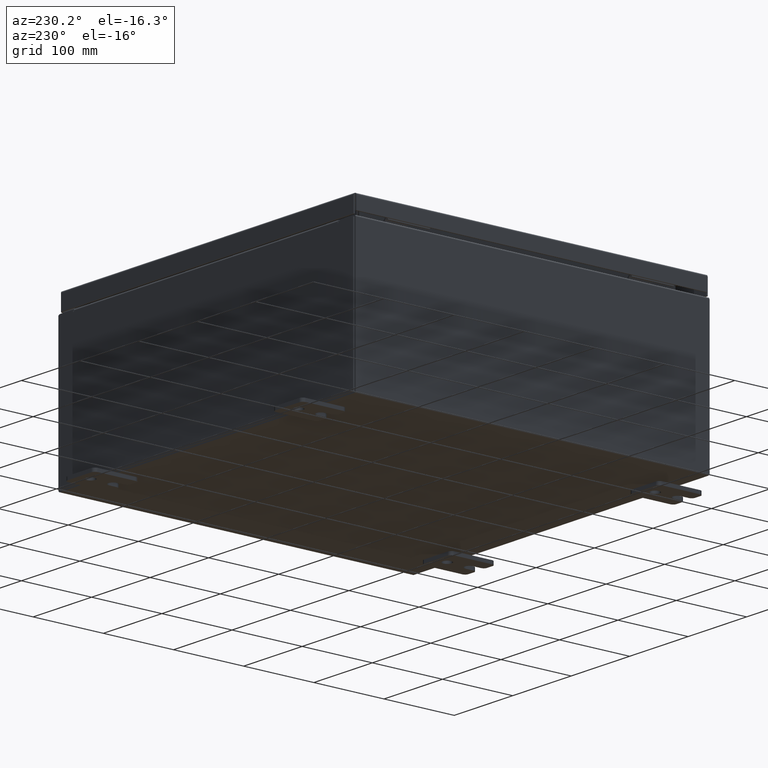
[diagram: clean part render]
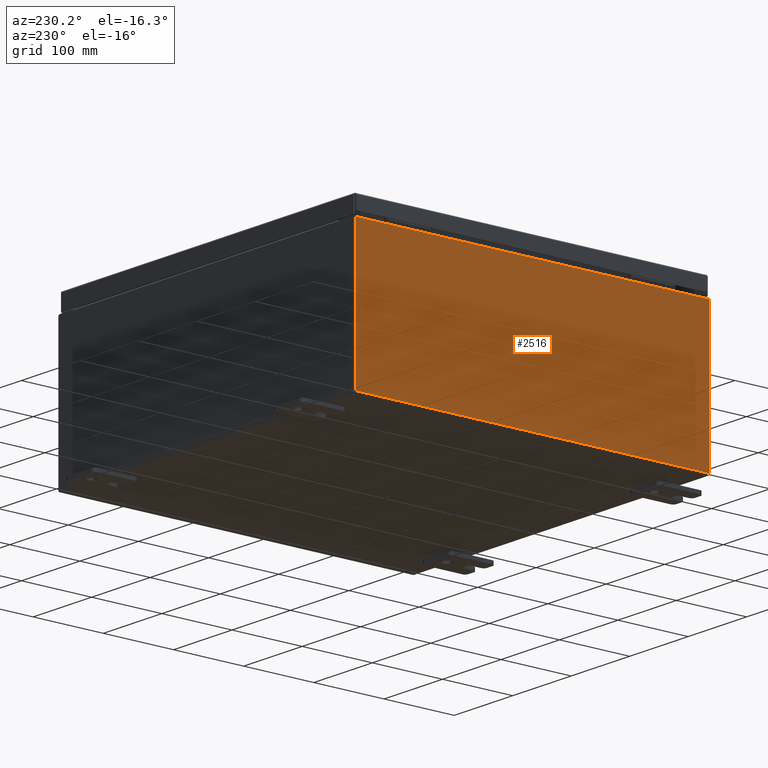
[diagram: same view with one face highlighted and labeled with its STEP entity id]
A machine part, auxiliary view. The second image highlights one B-rep face of the part: STEP entity #2516.
In plain terms, the highlighted planar face has unit normal (1, 0, 0).
Its self-contained STEP definition (entity closure, byte-faithful):
#2516 = ADVANCED_FACE ( 'NONE', ( #32071 ), #7217, .F. ) ;
#2818 = DIRECTION ( 'NONE',  ( -0.0000000000000000000, 1.000000000000000000, -0.0000000000000000000 ) ) ;
#3893 = DIRECTION ( 'NONE',  ( -3.584876173029202900E-015, -5.515194112352620500E-016, 1.000000000000000000 ) ) ;
#3986 = EDGE_LOOP ( 'NONE', ( #48825, #6792, #29566, #16795 ) ) ;
#4068 = CARTESIAN_POINT ( 'NONE',  ( -10.00000000000000000, 9.925300000000001800, -3.063557977397026300E-014 ) ) ;
#5303 = CARTESIAN_POINT ( 'NONE',  ( -10.00000000000000000, -9.925299999999998200, 0.01299999999999984700 ) ) ;
#5448 = EDGE_CURVE ( 'NONE', #45892, #12132, #47110, .T. ) ;
#6792 = ORIENTED_EDGE ( 'NONE', *, *, #11958, .T. ) ;
#7217 = PLANE ( 'NONE',  #55719 ) ;
#7966 = VECTOR ( 'NONE', #27672, 39.37007874015748100 ) ;
#8344 = VERTEX_POINT ( 'NONE', #5303 ) ;
#11946 = VECTOR ( 'NONE', #3893, 39.37007874015748100 ) ;
#11958 = EDGE_CURVE ( 'NONE', #12132, #48729, #63604, .T. ) ;
#12132 = VERTEX_POINT ( 'NONE', #34470 ) ;
#12352 = VECTOR ( 'NONE', #2818, 39.37007874015748100 ) ;
#14993 = LINE ( 'NONE', #62845, #11946 ) ;
#16795 = ORIENTED_EDGE ( 'NONE', *, *, #38917, .T. ) ;
#17815 = CARTESIAN_POINT ( 'NONE',  ( -10.00000000000002800, -9.925299999999998200, 7.837599999999999200 ) ) ;
#22010 = DIRECTION ( 'NONE',  ( 3.584876173029202900E-015, 0.0000000000000000000, -1.000000000000000000 ) ) ;
#25363 = LINE ( 'NONE', #32170, #12352 ) ;
#26030 = VECTOR ( 'NONE', #38409, 39.37007874015748100 ) ;
#27672 = DIRECTION ( 'NONE',  ( 0.0000000000000000000, 1.000000000000000000, 0.0000000000000000000 ) ) ;
#29566 = ORIENTED_EDGE ( 'NONE', *, *, #56104, .F. ) ;
#32071 = FACE_OUTER_BOUND ( 'NONE', #3986, .T. ) ;
#32170 = CARTESIAN_POINT ( 'NONE',  ( -10.00000000000000000, 9.925300000000000000, 0.01299999999999984700 ) ) ;
#34470 = CARTESIAN_POINT ( 'NONE',  ( -10.00000000000002800, 9.925299999999998200, 7.837599999999999200 ) ) ;
#35247 = CARTESIAN_POINT ( 'NONE',  ( -10.00000000000000000, 9.925300000000001800, 0.01299999999999983600 ) ) ;
#38168 = CARTESIAN_POINT ( 'NONE',  ( -10.00000000000002800, -9.925299999999996500, 7.837599999999999200 ) ) ;
#38409 = DIRECTION ( 'NONE',  ( 3.584876173029202900E-015, 5.515194112352620500E-016, -1.000000000000000000 ) ) ;
#38917 = EDGE_CURVE ( 'NONE', #8344, #45892, #14993, .T. ) ;
#45892 = VERTEX_POINT ( 'NONE', #38168 ) ;
#47110 = LINE ( 'NONE', #17815, #7966 ) ;
#48729 = VERTEX_POINT ( 'NONE', #35247 ) ;
#48825 = ORIENTED_EDGE ( 'NONE', *, *, #5448, .T. ) ;
#51391 = DIRECTION ( 'NONE',  ( 1.000000000000000000, 0.0000000000000000000, 3.584876173029202900E-015 ) ) ;
#55719 = AXIS2_PLACEMENT_3D ( 'NONE', #61047, #51391, #22010 ) ;
#56104 = EDGE_CURVE ( 'NONE', #8344, #48729, #25363, .T. ) ;
#61047 = CARTESIAN_POINT ( 'NONE',  ( -10.00000000000000000, 0.0000000000000000000, -3.610957538630361200E-014 ) ) ;
#62845 = CARTESIAN_POINT ( 'NONE',  ( -10.00000000000000000, -9.925299999999998200, -4.158357099863696100E-014 ) ) ;
#63604 = LINE ( 'NONE', #4068, #26030 ) ;